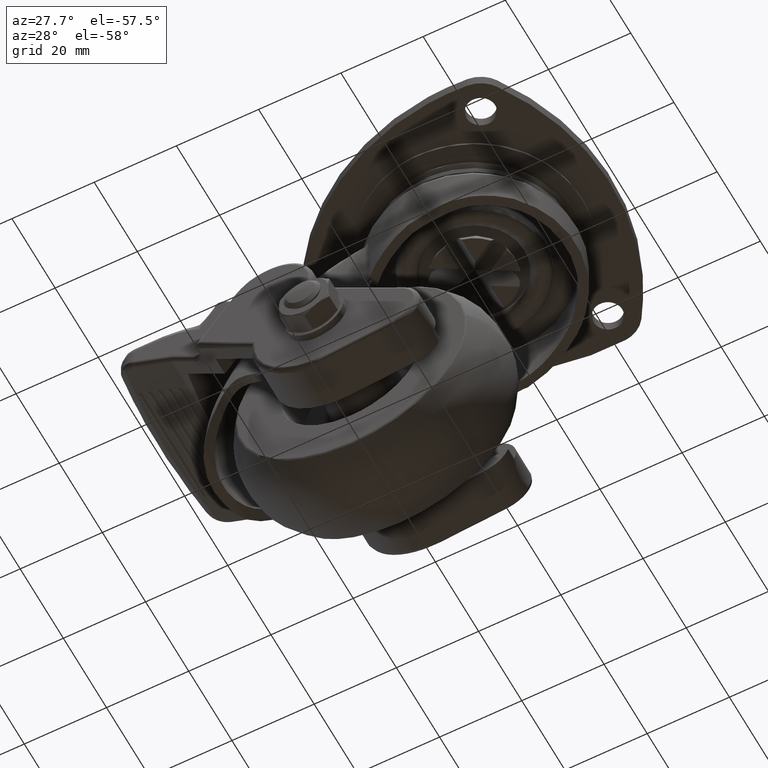
[diagram: clean part render]
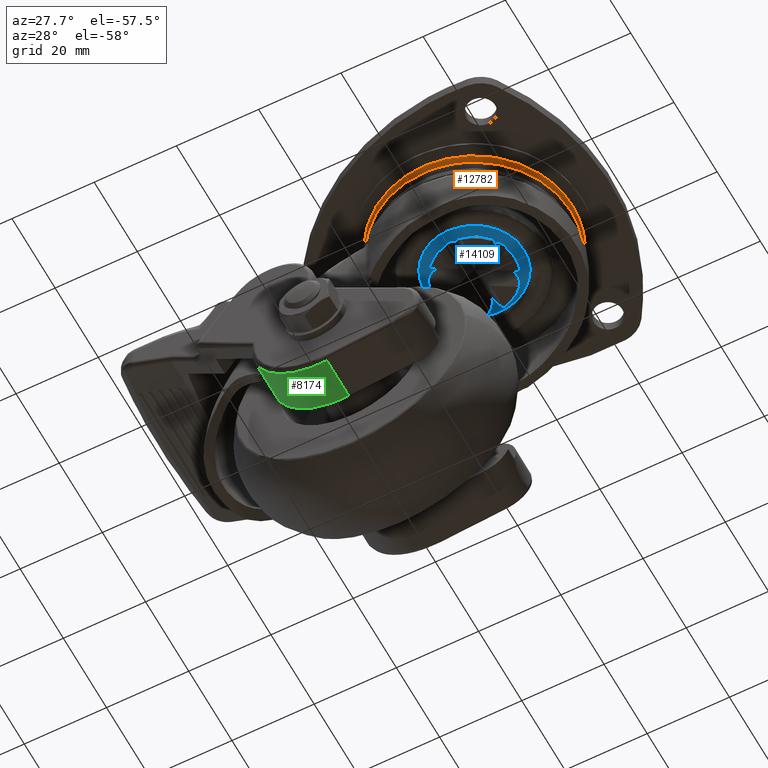
[diagram: same view with three faces highlighted in distinct colors, each labeled with its STEP entity id]
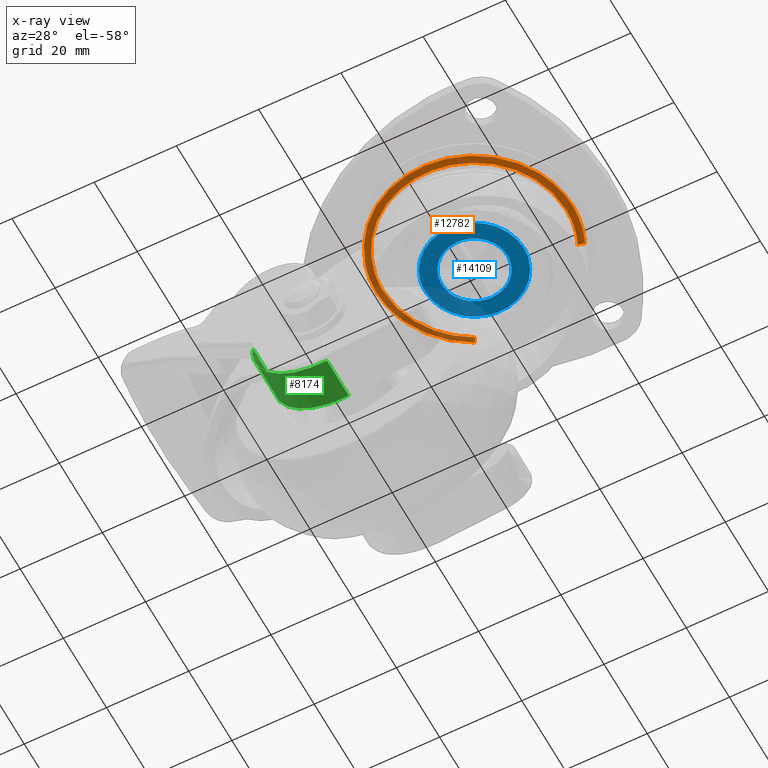
[diagram: x-ray of the same camera — body ghosted, the three highlighted faces saturated]
A machine part, auxiliary view with three faces highlighted in distinct colors.
The next image is the same camera in x-ray (body ghosted, the three faces saturated) — at least one of them is partly hidden behind the body in this view.
Their STEP definitions:

[orange] entity #12782 — the highlighted face is a freeform B-spline surface patch.
#12508=CARTESIAN_POINT('',(21.397010466824788,-10.583736243661930,-4.424549421080224));
#12509=VERTEX_POINT('',#12508);
#12510=CARTESIAN_POINT('',(-23.871479410152251,0.0,-4.424549397748230));
#12511=VERTEX_POINT('',#12510);
#12512=CARTESIAN_POINT('',(21.397010466824788,-10.583736243661932,-4.424549421080224));
#12513=CARTESIAN_POINT('',(14.824411483884822,-23.871479410152247,-4.424549397748231));
#12514=CARTESIAN_POINT('',(0.0,-23.871479410152251,-4.424549397748230));
#12515=CARTESIAN_POINT('',(-23.871479410152251,-23.871479410152251,-4.424549397748230));
#12516=CARTESIAN_POINT('',(-23.871479410152251,0.0,-4.424549397748230));
#12524=(BOUNDED_CURVE()B_SPLINE_CURVE(2,(#12512,#12513,#12514,#12515,#12516),.UNSPECIFIED.,.F.,.U.)B_SPLINE_CURVE_WITH_KNOTS((3,2,3),(0.575362209165932,0.750000000000000,1.0),.UNSPECIFIED.)CURVE()GEOMETRIC_REPRESENTATION_ITEM()RATIONAL_B_SPLINE_CURVE((0.876646594191695,0.795399101264557,1.0,0.707106781186547,1.0))REPRESENTATION_ITEM(''));
#12525=EDGE_CURVE('',#12509,#12511,#12524,.T.);
#12543=CARTESIAN_POINT('',(-21.967295607639759,9.342668434163876,-4.424549421169845));
#12544=VERTEX_POINT('',#12543);
#12558=CARTESIAN_POINT('',(-23.871479410152251,0.0,-4.424549397748230));
#12559=CARTESIAN_POINT('',(-23.871479410152247,4.865385626466663,-4.424549397748229));
#12560=CARTESIAN_POINT('',(-21.967295607639755,9.342668434163876,-4.424549421169845));
#12568=(BOUNDED_CURVE()B_SPLINE_CURVE(2,(#12558,#12559,#12560),.UNSPECIFIED.,.F.,.U.)B_SPLINE_CURVE_WITH_KNOTS((3,3),(0.0,0.066449865337498),.UNSPECIFIED.)CURVE()GEOMETRIC_REPRESENTATION_ITEM()RATIONAL_B_SPLINE_CURVE((1.0,0.922149140206318,0.885683713610226))REPRESENTATION_ITEM(''));
#12569=EDGE_CURVE('',#12511,#12544,#12568,.T.);
#12603=CARTESIAN_POINT('',(23.871479410152251,0.0,-4.424549397748230));
#12604=VERTEX_POINT('',#12603);
#12605=CARTESIAN_POINT('',(23.871479410152251,0.0,-4.424549397748230));
#12606=CARTESIAN_POINT('',(23.871479410152258,-5.581132537186864,-4.424549397748230));
#12607=CARTESIAN_POINT('',(21.397010466824799,-10.583736243661932,-4.424549421080224));
#12615=(BOUNDED_CURVE()B_SPLINE_CURVE(2,(#12605,#12606,#12607),.UNSPECIFIED.,.F.,.U.)B_SPLINE_CURVE_WITH_KNOTS((3,3),(0.500000000000000,0.575362209165932),.UNSPECIFIED.)CURVE()GEOMETRIC_REPRESENTATION_ITEM()RATIONAL_B_SPLINE_CURVE((1.0,0.911707679921990,0.876646594191695))REPRESENTATION_ITEM(''));
#12616=EDGE_CURVE('',#12604,#12509,#12615,.T.);
#12618=CARTESIAN_POINT('',(21.793876702516609,9.740352532800246,-4.424549398178639));
#12619=VERTEX_POINT('',#12618);
#12620=CARTESIAN_POINT('',(21.793876702516609,9.740352532800246,-4.424549398178639));
#12621=CARTESIAN_POINT('',(23.871479410152247,5.091751050180061,-4.424549397748230));
#12622=CARTESIAN_POINT('',(23.871479410152251,0.0,-4.424549397748230));
#12630=(BOUNDED_CURVE()B_SPLINE_CURVE(2,(#12620,#12621,#12622),.UNSPECIFIED.,.F.,.U.)B_SPLINE_CURVE_WITH_KNOTS((3,3),(0.430709483575402,0.500000000000000),.UNSPECIFIED.)CURVE()GEOMETRIC_REPRESENTATION_ITEM()RATIONAL_B_SPLINE_CURVE((0.882641638329771,0.918821110444612,1.0))REPRESENTATION_ITEM(''));
#12631=EDGE_CURVE('',#12619,#12604,#12630,.T.);
#12633=CARTESIAN_POINT('',(-10.970851179863701,21.201130950326512,-4.424549398221217));
#12634=VERTEX_POINT('',#12633);
#12650=CARTESIAN_POINT('',(-21.967295607639766,9.342668434163876,-4.424549421169844));
#12651=CARTESIAN_POINT('',(-18.603727993323044,17.251381487924828,-4.424549397748230));
#12652=CARTESIAN_POINT('',(-10.970851179863706,21.201130950326512,-4.424549398221217));
#12660=(BOUNDED_CURVE()B_SPLINE_CURVE(2,(#12650,#12651,#12652),.UNSPECIFIED.,.F.,.U.)B_SPLINE_CURVE_WITH_KNOTS((3,3),(0.066449865337498,0.171825371000895),.UNSPECIFIED.)CURVE()GEOMETRIC_REPRESENTATION_ITEM()RATIONAL_B_SPLINE_CURVE((0.885683713610226,0.827857219195551,0.874103860134235))REPRESENTATION_ITEM(''));
#12661=EDGE_CURVE('',#12544,#12634,#12660,.T.);
#12671=CARTESIAN_POINT('',(21.860577896096252,9.770163343605127,-4.387421882799212));
#12672=CARTESIAN_POINT('',(31.087065258022214,-10.873948590792248,-4.387421882799211));
#12673=CARTESIAN_POINT('',(11.004427990213200,-21.266018017490474,-4.387421882799211));
#12674=CARTESIAN_POINT('',(-10.261590027277270,-32.270446007703683,-4.387421882799211));
#12675=CARTESIAN_POINT('',(-21.266018017490474,-11.004427990213211,-4.387421882799211));
#12676=CARTESIAN_POINT('',(-32.270446007703683,10.261590027277284,-4.387421882799211));
#12677=CARTESIAN_POINT('',(-11.004427990213211,21.266018017490474,-4.387421882799211));
#12678=CARTESIAN_POINT('',(21.107968519766224,9.433799109520249,-4.818181895831016));
#12679=CARTESIAN_POINT('',(30.016809160174535,-10.499583571438281,-4.818181895831016));
#12680=CARTESIAN_POINT('',(10.625570865486319,-20.533877969169751,-4.818181895831015));
#12681=CARTESIAN_POINT('',(-9.908307103683438,-31.159448834656075,-4.818181895831016));
#12682=CARTESIAN_POINT('',(-20.533877969169751,-10.625570865486329,-4.818181895831015));
#12683=CARTESIAN_POINT('',(-31.159448834656075,9.908307103683448,-4.818181895831016));
#12684=CARTESIAN_POINT('',(-10.625570865486331,20.533877969169751,-4.818181895831015));
#12685=CARTESIAN_POINT('',(20.259021432128900,9.054378594851439,-4.797089821985121));
#12686=CARTESIAN_POINT('',(28.809555004340812,-10.077297983603044,-4.797089821985121));
#12687=CARTESIAN_POINT('',(10.198218160639740,-19.708020384461754,-4.797089821985122));
#12688=CARTESIAN_POINT('',(-9.509802223822009,-29.906238545101480,-4.797089821985122));
#12689=CARTESIAN_POINT('',(-19.708020384461744,-10.198218160639751,-4.797089821985122));
#12690=CARTESIAN_POINT('',(-29.906238545101480,9.509802223822019,-4.797089821985122));
#12691=CARTESIAN_POINT('',(-10.198218160639753,19.708020384461744,-4.797089821985122));
#12699=(BOUNDED_SURFACE()B_SPLINE_SURFACE(2,2,((#12671,#12678,#12685),(#12672,#12679,#12686),(#12673,#12680,#12687),(#12674,#12681,#12688),(#12675,#12682,#12689),(#12676,#12683,#12690),(#12677,#12684,#12691)),.UNSPECIFIED.,.F.,.F.,.U.)B_SPLINE_SURFACE_WITH_KNOTS((3,2,2,3),(3,3),(0.0,38.085707071661332,77.758318604641886,117.430930137622400),(0.0,1.830360126657434),.UNSPECIFIED.)GEOMETRIC_REPRESENTATION_ITEM()RATIONAL_B_SPLINE_SURFACE(((0.924956013273077,0.896066427291214,0.925673226323901),(0.680179291522746,0.658934931960182,0.680706704132405),(0.946240945599193,0.916686557320000,0.946974663036205),(0.669093389269561,0.648195280903523,0.669612205844747),(0.946240945599193,0.916686557320000,0.946974663036205),(0.669093389269561,0.648195280903523,0.669612205844747),(0.946240945599193,0.916686557320000,0.946974663036205)))REPRESENTATION_ITEM('')SURFACE());
#12700=ORIENTED_EDGE('',*,*,#12631,.T.);
#12701=ORIENTED_EDGE('',*,*,#12616,.T.);
#12702=ORIENTED_EDGE('',*,*,#12525,.T.);
#12703=ORIENTED_EDGE('',*,*,#12569,.T.);
#12704=ORIENTED_EDGE('',*,*,#12661,.T.);
#12705=CARTESIAN_POINT('',(-10.235851355055679,19.780746398871980,-4.798018899278171));
#12706=VERTEX_POINT('',#12705);
#12707=CARTESIAN_POINT('',(-10.970851179863708,21.201130950326512,-4.424549398221217));
#12708=CARTESIAN_POINT('',(-10.623392012446118,20.529667343406061,-4.798018398963315));
#12709=CARTESIAN_POINT('',(-10.235851355055676,19.780746398871980,-4.798018899278171));
#12717=(BOUNDED_CURVE()B_SPLINE_CURVE(2,(#12707,#12708,#12709),.UNSPECIFIED.,.F.,.U.)B_SPLINE_CURVE_WITH_KNOTS((3,3),(-1.419603642035961,-0.568924215773596),.UNSPECIFIED.)CURVE()GEOMETRIC_REPRESENTATION_ITEM()RATIONAL_B_SPLINE_CURVE((0.943680018407201,0.919280800855302,0.944347103401346))REPRESENTATION_ITEM(''));
#12718=EDGE_CURVE('',#12634,#12706,#12717,.T.);
#12719=ORIENTED_EDGE('',*,*,#12718,.T.);
#12720=CARTESIAN_POINT('',(-22.272193000000001,0.0,-4.798019399278131));
#12721=VERTEX_POINT('',#12720);
#12722=CARTESIAN_POINT('',(-22.272193000000001,0.0,-4.798019399278131));
#12723=CARTESIAN_POINT('',(-22.272192999999998,13.552356353921962,-4.798019399278131));
#12724=CARTESIAN_POINT('',(-10.235851355055676,19.780746398871980,-4.798018899278171));
#12732=(BOUNDED_CURVE()B_SPLINE_CURVE(2,(#12722,#12723,#12724),.UNSPECIFIED.,.F.,.U.)B_SPLINE_CURVE_WITH_KNOTS((3,3),(0.0,0.171825371002079),.UNSPECIFIED.)CURVE()GEOMETRIC_REPRESENTATION_ITEM()RATIONAL_B_SPLINE_CURVE((1.0,0.798694056053542,0.874103860135275))REPRESENTATION_ITEM(''));
#12733=EDGE_CURVE('',#12721,#12706,#12732,.T.);
#12734=ORIENTED_EDGE('',*,*,#12733,.F.);
#12735=CARTESIAN_POINT('',(22.272193000000001,0.0,-4.798019399278131));
#12736=VERTEX_POINT('',#12735);
#12737=CARTESIAN_POINT('',(22.272193000000001,0.0,-4.798019399278131));
#12738=CARTESIAN_POINT('',(22.272192999999994,-22.272192999999994,-4.798019399278131));
#12739=CARTESIAN_POINT('',(0.0,-22.272193000000001,-4.798019399278131));
#12740=CARTESIAN_POINT('',(-22.272192999999994,-22.272192999999994,-4.798019399278131));
#12741=CARTESIAN_POINT('',(-22.272193000000001,0.0,-4.798019399278131));
#12749=(BOUNDED_CURVE()B_SPLINE_CURVE(2,(#12737,#12738,#12739,#12740,#12741),.UNSPECIFIED.,.F.,.U.)B_SPLINE_CURVE_WITH_KNOTS((3,2,3),(0.500000000000000,0.750000000000000,1.0),.UNSPECIFIED.)CURVE()GEOMETRIC_REPRESENTATION_ITEM()RATIONAL_B_SPLINE_CURVE((1.0,0.707106781186547,1.0,0.707106781186547,1.0))REPRESENTATION_ITEM(''));
#12750=EDGE_CURVE('',#12736,#12721,#12749,.T.);
#12751=ORIENTED_EDGE('',*,*,#12750,.F.);
#12752=CARTESIAN_POINT('',(20.333780736908089,9.087790823437182,-4.798018899278171));
#12753=VERTEX_POINT('',#12752);
#12754=CARTESIAN_POINT('',(20.333780736908093,9.087790823437182,-4.798018899278171));
#12755=CARTESIAN_POINT('',(22.272193000000005,4.750625637870330,-4.798019399278131));
#12756=CARTESIAN_POINT('',(22.272193000000001,0.0,-4.798019399278131));
#12764=(BOUNDED_CURVE()B_SPLINE_CURVE(2,(#12754,#12755,#12756),.UNSPECIFIED.,.F.,.U.)B_SPLINE_CURVE_WITH_KNOTS((3,3),(0.430709483574167,0.500000000000000),.UNSPECIFIED.)CURVE()GEOMETRIC_REPRESENTATION_ITEM()RATIONAL_B_SPLINE_CURVE((0.882641638328481,0.918821110443166,1.0))REPRESENTATION_ITEM(''));
#12765=EDGE_CURVE('',#12753,#12736,#12764,.T.);
#12766=ORIENTED_EDGE('',*,*,#12765,.F.);
#12767=CARTESIAN_POINT('',(21.793876702516616,9.740352532800246,-4.424549398178639));
#12768=CARTESIAN_POINT('',(21.103640173448326,9.431864638678054,-4.798018398460862));
#12769=CARTESIAN_POINT('',(20.333780736908086,9.087790823437182,-4.798018899278171));
#12777=(BOUNDED_CURVE()B_SPLINE_CURVE(2,(#12767,#12768,#12769),.UNSPECIFIED.,.F.,.U.)B_SPLINE_CURVE_WITH_KNOTS((3,3),(-1.419603642135518,-0.568924216888480),.UNSPECIFIED.)CURVE()GEOMETRIC_REPRESENTATION_ITEM()RATIONAL_B_SPLINE_CURVE((0.922452692093073,0.898602315424037,0.923104771474666))REPRESENTATION_ITEM(''));
#12778=EDGE_CURVE('',#12619,#12753,#12777,.T.);
#12779=ORIENTED_EDGE('',*,*,#12778,.F.);
#12780=EDGE_LOOP('',(#12700,#12701,#12702,#12703,#12704,#12719,#12734,#12751,#12766,#12779));
#12781=FACE_OUTER_BOUND('',#12780,.T.);
#12782=ADVANCED_FACE('',(#12781),#12699,.T.);

[blue] entity #14109 — the highlighted face is a freeform B-spline surface patch.
#13550=CARTESIAN_POINT('',(12.000000000000041,0.0,-21.699995000000001));
#13551=VERTEX_POINT('',#13550);
#13552=CARTESIAN_POINT('',(0.941509148789624,-11.963008004793110,-21.699995000000001));
#13553=VERTEX_POINT('',#13552);
#13554=CARTESIAN_POINT('',(12.000000000000041,0.0,-21.699995000000001));
#13555=CARTESIAN_POINT('',(12.000000000000043,-11.092685899795383,-21.699995000000001));
#13556=CARTESIAN_POINT('',(0.941509148789624,-11.963008004793117,-21.699994999999998));
#13564=(BOUNDED_CURVE()B_SPLINE_CURVE(2,(#13554,#13555,#13556),.UNSPECIFIED.,.F.,.U.)B_SPLINE_CURVE_WITH_KNOTS((3,3),(0.500000000000000,0.736331300631178),.UNSPECIFIED.)CURVE()GEOMETRIC_REPRESENTATION_ITEM()RATIONAL_B_SPLINE_CURVE((1.0,0.723120658607058,0.969723356168501))REPRESENTATION_ITEM(''));
#13565=EDGE_CURVE('',#13551,#13553,#13564,.T.);
#13567=CARTESIAN_POINT('',(-0.941509148789614,11.963008004793220,-21.699995000000001));
#13568=VERTEX_POINT('',#13567);
#13569=CARTESIAN_POINT('',(-0.941509148789614,11.963008004793229,-21.699995000000005));
#13570=CARTESIAN_POINT('',(-0.471481284147743,12.0,-21.699995000000001));
#13571=CARTESIAN_POINT('',(4.263256E-014,12.0,-21.699995000000001));
#13572=CARTESIAN_POINT('',(12.000000000000043,12.0,-21.699995000000005));
#13573=CARTESIAN_POINT('',(12.000000000000041,0.0,-21.699995000000001));
#13581=(BOUNDED_CURVE()B_SPLINE_CURVE(2,(#13569,#13570,#13571,#13572,#13573),.UNSPECIFIED.,.F.,.U.)B_SPLINE_CURVE_WITH_KNOTS((3,2,3),(0.236331300631176,0.250000000000000,0.500000000000000),.UNSPECIFIED.)CURVE()GEOMETRIC_REPRESENTATION_ITEM()RATIONAL_B_SPLINE_CURVE((0.969723356168497,0.983986122579488,1.0,0.707106781186548,1.0))REPRESENTATION_ITEM(''));
#13582=EDGE_CURVE('',#13568,#13551,#13581,.T.);
#13618=CARTESIAN_POINT('',(-11.999999999999959,0.0,-21.699995000000001));
#13619=VERTEX_POINT('',#13618);
#13620=CARTESIAN_POINT('',(0.941509148789624,-11.963008004793112,-21.699995000000005));
#13621=CARTESIAN_POINT('',(0.471481284147795,-11.999999999999995,-21.699994999999998));
#13622=CARTESIAN_POINT('',(4.263256E-014,-12.0,-21.699995000000001));
#13623=CARTESIAN_POINT('',(-11.999999999999957,-12.0,-21.699995000000005));
#13624=CARTESIAN_POINT('',(-11.999999999999959,0.0,-21.699995000000001));
#13632=(BOUNDED_CURVE()B_SPLINE_CURVE(2,(#13620,#13621,#13622,#13623,#13624),.UNSPECIFIED.,.F.,.U.)B_SPLINE_CURVE_WITH_KNOTS((3,2,3),(0.736331300631177,0.750000000000000,1.0),.UNSPECIFIED.)CURVE()GEOMETRIC_REPRESENTATION_ITEM()RATIONAL_B_SPLINE_CURVE((0.969723356168498,0.983986122579489,1.0,0.707106781186548,1.0))REPRESENTATION_ITEM(''));
#13633=EDGE_CURVE('',#13553,#13619,#13632,.T.);
#13640=CARTESIAN_POINT('',(-11.999999999999959,0.0,-21.699995000000001));
#13641=CARTESIAN_POINT('',(-11.999999999999956,11.092685899795248,-21.699994999999994));
#13642=CARTESIAN_POINT('',(-0.941509148789614,11.963008004793222,-21.699995000000005));
#13650=(BOUNDED_CURVE()B_SPLINE_CURVE(2,(#13640,#13641,#13642),.UNSPECIFIED.,.F.,.U.)B_SPLINE_CURVE_WITH_KNOTS((3,3),(0.0,0.236331300631176),.UNSPECIFIED.)CURVE()GEOMETRIC_REPRESENTATION_ITEM()RATIONAL_B_SPLINE_CURVE((1.0,0.723120658607060,0.969723356168496))REPRESENTATION_ITEM(''));
#13651=EDGE_CURVE('',#13619,#13568,#13650,.T.);
#13673=CARTESIAN_POINT('',(-6.928203230275540,4.0,-21.699995000000001));
#13674=VERTEX_POINT('',#13673);
#13789=CARTESIAN_POINT('',(6.928203230275650,-4.000000000000116,-21.699995000000001));
#13790=VERTEX_POINT('',#13789);
#13905=CARTESIAN_POINT('',(6.928203230275430,3.999999999999950,-21.699995000000001));
#13906=VERTEX_POINT('',#13905);
#13963=CARTESIAN_POINT('',(-6.928203230275770,-4.000000000000116,-21.699995000000001));
#13964=VERTEX_POINT('',#13963);
#14014=CARTESIAN_POINT('',(13.198799953483389,-13.195137032722180,-21.699995000000001));
#14015=CARTESIAN_POINT('',(-13.198800597213459,-13.195137032722180,-21.699995000000001));
#14016=CARTESIAN_POINT('',(13.198799953483389,13.195137676452349,-21.699995000000001));
#14017=CARTESIAN_POINT('',(-13.198800597213459,13.195137676452349,-21.699995000000001));
#14018=B_SPLINE_SURFACE_WITH_KNOTS('',1,1,((#14014,#14016),(#14015,#14017)),.UNSPECIFIED.,.F.,.F.,.U.,(2,2),(2,2),(0.0,26.397600550696851),(0.0,26.390274709174530),.UNSPECIFIED.);
#14019=ORIENTED_EDGE('',*,*,#13651,.T.);
#14020=ORIENTED_EDGE('',*,*,#13582,.T.);
#14021=ORIENTED_EDGE('',*,*,#13565,.T.);
#14022=ORIENTED_EDGE('',*,*,#13633,.T.);
#14023=EDGE_LOOP('',(#14019,#14020,#14021,#14022));
#14024=FACE_OUTER_BOUND('',#14023,.T.);
#14025=CARTESIAN_POINT('',(4.263256E-014,-8.0,-21.699995000000001));
#14026=VERTEX_POINT('',#14025);
#14027=CARTESIAN_POINT('',(6.928203230275650,-4.000000000000116,-21.699995000000001));
#14028=CARTESIAN_POINT('',(4.618802153517017,-8.0,-21.699994999999952));
#14029=CARTESIAN_POINT('',(4.263256E-014,-8.0,-21.699994999999952));
#14037=(BOUNDED_CURVE()B_SPLINE_CURVE(2,(#14027,#14028,#14029),.UNSPECIFIED.,.F.,.U.)CURVE()GEOMETRIC_REPRESENTATION_ITEM()QUASI_UNIFORM_CURVE()RATIONAL_B_SPLINE_CURVE((1.0,0.866025403784440,1.0))REPRESENTATION_ITEM(''));
#14038=EDGE_CURVE('',#13790,#14026,#14037,.T.);
#14039=ORIENTED_EDGE('',*,*,#14038,.F.);
#14040=CARTESIAN_POINT('',(6.928203230275430,3.999999999999950,-21.699995000000001));
#14041=CARTESIAN_POINT('',(9.237604307034077,-1.734723E-014,-21.699994999999944));
#14042=CARTESIAN_POINT('',(6.928203230275650,-4.000000000000116,-21.699995000000001));
#14050=(BOUNDED_CURVE()B_SPLINE_CURVE(2,(#14040,#14041,#14042),.UNSPECIFIED.,.F.,.U.)CURVE()GEOMETRIC_REPRESENTATION_ITEM()QUASI_UNIFORM_CURVE()RATIONAL_B_SPLINE_CURVE((1.0,0.866025403784437,1.0))REPRESENTATION_ITEM(''));
#14051=EDGE_CURVE('',#13906,#13790,#14050,.T.);
#14052=ORIENTED_EDGE('',*,*,#14051,.F.);
#14053=CARTESIAN_POINT('',(4.263256E-014,8.0,-21.699995000000001));
#14054=VERTEX_POINT('',#14053);
#14055=CARTESIAN_POINT('',(4.263256E-014,8.0,-21.699994999999952));
#14056=CARTESIAN_POINT('',(4.618802153517038,8.0,-21.699994999999952));
#14057=CARTESIAN_POINT('',(6.928203230275430,3.999999999999950,-21.699995000000001));
#14065=(BOUNDED_CURVE()B_SPLINE_CURVE(2,(#14055,#14056,#14057),.UNSPECIFIED.,.F.,.U.)CURVE()GEOMETRIC_REPRESENTATION_ITEM()QUASI_UNIFORM_CURVE()RATIONAL_B_SPLINE_CURVE((1.0,0.866025403784439,1.0))REPRESENTATION_ITEM(''));
#14066=EDGE_CURVE('',#14054,#13906,#14065,.T.);
#14067=ORIENTED_EDGE('',*,*,#14066,.F.);
#14068=CARTESIAN_POINT('',(-6.928203230275486,3.999999999999968,-21.699994999999952));
#14069=CARTESIAN_POINT('',(-4.618802153516988,8.0,-21.699994999999955));
#14070=CARTESIAN_POINT('',(4.263256E-014,8.0,-21.699994999999952));
#14078=(BOUNDED_CURVE()B_SPLINE_CURVE(2,(#14068,#14069,#14070),.UNSPECIFIED.,.F.,.U.)CURVE()GEOMETRIC_REPRESENTATION_ITEM()QUASI_UNIFORM_CURVE()RATIONAL_B_SPLINE_CURVE((1.0,0.866025403784438,1.0))REPRESENTATION_ITEM(''));
#14079=EDGE_CURVE('',#13674,#14054,#14078,.T.);
#14080=ORIENTED_EDGE('',*,*,#14079,.F.);
#14081=CARTESIAN_POINT('',(-6.928203230275770,-4.000000000000116,-21.699995000000001));
#14082=CARTESIAN_POINT('',(-9.237604307033941,1.040834E-014,-21.699994999999944));
#14083=CARTESIAN_POINT('',(-6.928203230275485,3.999999999999970,-21.699994999999952));
#14091=(BOUNDED_CURVE()B_SPLINE_CURVE(2,(#14081,#14082,#14083),.UNSPECIFIED.,.F.,.U.)CURVE()GEOMETRIC_REPRESENTATION_ITEM()QUASI_UNIFORM_CURVE()RATIONAL_B_SPLINE_CURVE((1.0,0.866025403784441,1.0))REPRESENTATION_ITEM(''));
#14092=EDGE_CURVE('',#13964,#13674,#14091,.T.);
#14093=ORIENTED_EDGE('',*,*,#14092,.F.);
#14094=CARTESIAN_POINT('',(4.263256E-014,-8.0,-21.699994999999952));
#14095=CARTESIAN_POINT('',(-4.618802153516999,-8.0,-21.699994999999955));
#14096=CARTESIAN_POINT('',(-6.928203230275770,-4.000000000000116,-21.699995000000001));
#14104=(BOUNDED_CURVE()B_SPLINE_CURVE(2,(#14094,#14095,#14096),.UNSPECIFIED.,.F.,.U.)CURVE()GEOMETRIC_REPRESENTATION_ITEM()QUASI_UNIFORM_CURVE()RATIONAL_B_SPLINE_CURVE((1.0,0.866025403784437,1.0))REPRESENTATION_ITEM(''));
#14105=EDGE_CURVE('',#14026,#13964,#14104,.T.);
#14106=ORIENTED_EDGE('',*,*,#14105,.F.);
#14107=EDGE_LOOP('',(#14039,#14052,#14067,#14080,#14093,#14106));
#14108=FACE_BOUND('',#14107,.T.);
#14109=ADVANCED_FACE('',(#14024,#14108),#14018,.T.);

[green] entity #8174 — the highlighted face is a freeform B-spline surface patch.
#4895=CARTESIAN_POINT('',(-22.285733202410398,-25.899999999999999,-68.810121483317886));
#4896=VERTEX_POINT('',#4895);
#4991=CARTESIAN_POINT('',(-40.307986424324802,-25.899999999999999,-50.765148638659198));
#4992=VERTEX_POINT('',#4991);
#5024=CARTESIAN_POINT('',(-22.285733202410391,-25.899999999999999,-68.810121483317971));
#5025=CARTESIAN_POINT('',(-30.071586765085843,-25.899999999999999,-69.628447667913548));
#5026=CARTESIAN_POINT('',(-35.603853858828892,-25.899999999999999,-64.089206361804145));
#5027=CARTESIAN_POINT('',(-41.136120952571936,-25.899999999999999,-58.549965055694734));
#5028=CARTESIAN_POINT('',(-40.307986424324938,-25.899999999999999,-50.765148638659191));
#5036=(BOUNDED_CURVE()B_SPLINE_CURVE(2,(#5024,#5025,#5026,#5027,#5028),.UNSPECIFIED.,.F.,.U.)B_SPLINE_CURVE_WITH_KNOTS((3,2,3),(0.0,0.500000000000000,1.0),.UNSPECIFIED.)CURVE()GEOMETRIC_REPRESENTATION_ITEM()RATIONAL_B_SPLINE_CURVE((1.0,0.902449644896996,1.0,0.902449644896996,1.0))REPRESENTATION_ITEM(''));
#5037=EDGE_CURVE('',#4896,#4992,#5036,.T.);
#7340=CARTESIAN_POINT('',(-40.310747128589412,-22.899999999999999,-50.791299732977997));
#7341=VERTEX_POINT('',#7340);
#7342=CARTESIAN_POINT('',(-40.307986424324802,-22.899999999999999,-50.765148638659198));
#7343=VERTEX_POINT('',#7342);
#7344=CARTESIAN_POINT('',(-40.310747128589533,-22.899999999999999,-50.791299732977990));
#7345=CARTESIAN_POINT('',(-40.309377259386160,-22.900000000000006,-50.778223079162025));
#7346=CARTESIAN_POINT('',(-40.307986424324938,-22.899999999999999,-50.765148638659191));
#7354=(BOUNDED_CURVE()B_SPLINE_CURVE(2,(#7344,#7345,#7346),.UNSPECIFIED.,.F.,.U.)CURVE()GEOMETRIC_REPRESENTATION_ITEM()QUASI_UNIFORM_CURVE()RATIONAL_B_SPLINE_CURVE((1.0,0.999999678622596,1.0))REPRESENTATION_ITEM(''));
#7355=EDGE_CURVE('',#7341,#7343,#7354,.T.);
#7487=CARTESIAN_POINT('',(-40.310747128589462,-15.800000000000001,-50.791299732978601));
#7488=VERTEX_POINT('',#7487);
#7494=CARTESIAN_POINT('',(-40.310747128589462,-15.800000000000001,-50.791299732978601));
#7495=CARTESIAN_POINT('',(-40.310747128589412,-22.899999999999999,-50.791299732977997));
#7496=QUASI_UNIFORM_CURVE('',1,(#7494,#7495),.UNSPECIFIED.,.F.,.U.);
#7497=EDGE_CURVE('',#7488,#7341,#7496,.T.);
#7527=CARTESIAN_POINT('',(-22.285733202405350,-15.800000000000001,-68.810121483315299));
#7528=VERTEX_POINT('',#7527);
#7534=CARTESIAN_POINT('',(-40.310747128589590,-15.800000000000001,-50.791299732978580));
#7535=CARTESIAN_POINT('',(-41.125557259878896,-15.799999999999997,-58.569407297097079));
#7536=CARTESIAN_POINT('',(-35.594558802770379,-15.800000000000001,-64.098505677168845));
#7537=CARTESIAN_POINT('',(-30.063560345661852,-15.799999999999997,-69.627604057240632));
#7538=CARTESIAN_POINT('',(-22.285733202405350,-15.800000000000001,-68.810121483315299));
#7546=(BOUNDED_CURVE()B_SPLINE_CURVE(2,(#7534,#7535,#7536,#7537,#7538),.UNSPECIFIED.,.F.,.U.)B_SPLINE_CURVE_WITH_KNOTS((3,2,3),(0.0,0.500000000000000,1.0),.UNSPECIFIED.)CURVE()GEOMETRIC_REPRESENTATION_ITEM()RATIONAL_B_SPLINE_CURVE((1.0,0.902622260996355,1.0,0.902622260996355,1.0))REPRESENTATION_ITEM(''));
#7547=EDGE_CURVE('',#7488,#7528,#7546,.T.);
#8139=CARTESIAN_POINT('',(-22.285733202405350,-15.800000000000001,-68.810121483315299));
#8140=CARTESIAN_POINT('',(-22.285733202410398,-25.899999999999999,-68.810121483317886));
#8141=QUASI_UNIFORM_CURVE('',1,(#8139,#8140),.UNSPECIFIED.,.F.,.U.);
#8142=EDGE_CURVE('',#7528,#4896,#8141,.T.);
#8148=CARTESIAN_POINT('',(-21.596362141796611,-15.547499999999999,-68.722863651724225));
#8149=CARTESIAN_POINT('',(-21.596362141796611,-26.158812500000000,-68.722863651724225));
#8150=CARTESIAN_POINT('',(-44.300785920388634,-15.547500000000001,-72.086824985994767));
#8151=CARTESIAN_POINT('',(-44.300785920388634,-26.158812500000003,-72.086824985994767));
#8152=CARTESIAN_POINT('',(-40.126495753728477,-15.547499999999996,-49.517323516514153));
#8153=CARTESIAN_POINT('',(-40.126495753728477,-26.158812500000000,-49.517323516514153));
#8161=(BOUNDED_SURFACE()B_SPLINE_SURFACE(1,2,((#8148,#8150,#8152),(#8149,#8151,#8153)),.UNSPECIFIED.,.F.,.F.,.U.)B_SPLINE_SURFACE_WITH_KNOTS((2,2),(3,3),(0.0,10.611312500000009),(0.0,33.752332053859782),.UNSPECIFIED.)GEOMETRIC_REPRESENTATION_ITEM()RATIONAL_B_SPLINE_SURFACE(((1.0,0.581123404957838,0.999159944715435),(1.0,0.581123404957838,0.999159944715435)))REPRESENTATION_ITEM('')SURFACE());
#8162=ORIENTED_EDGE('',*,*,#8142,.T.);
#8163=ORIENTED_EDGE('',*,*,#5037,.T.);
#8164=CARTESIAN_POINT('',(-40.307986424324802,-22.899999999999999,-50.765148638659198));
#8165=CARTESIAN_POINT('',(-40.307986424324802,-25.899999999999999,-50.765148638659198));
#8166=QUASI_UNIFORM_CURVE('',1,(#8164,#8165),.UNSPECIFIED.,.F.,.U.);
#8167=EDGE_CURVE('',#7343,#4992,#8166,.T.);
#8168=ORIENTED_EDGE('',*,*,#8167,.F.);
#8169=ORIENTED_EDGE('',*,*,#7355,.F.);
#8170=ORIENTED_EDGE('',*,*,#7497,.F.);
#8171=ORIENTED_EDGE('',*,*,#7547,.T.);
#8172=EDGE_LOOP('',(#8162,#8163,#8168,#8169,#8170,#8171));
#8173=FACE_OUTER_BOUND('',#8172,.T.);
#8174=ADVANCED_FACE('',(#8173),#8161,.T.);